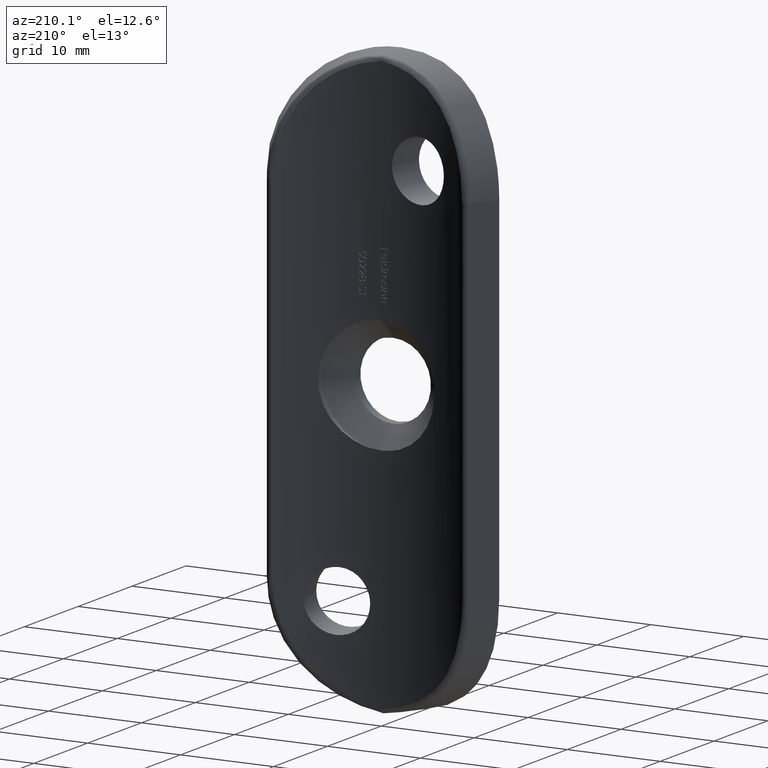
[diagram: clean part render]
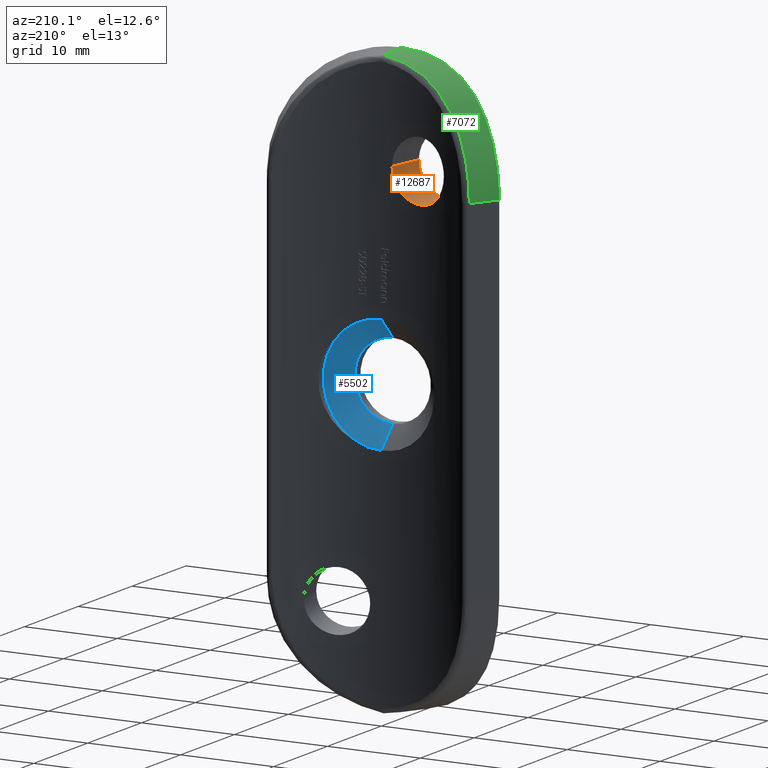
[diagram: same view with three faces highlighted in distinct colors, each labeled with its STEP entity id]
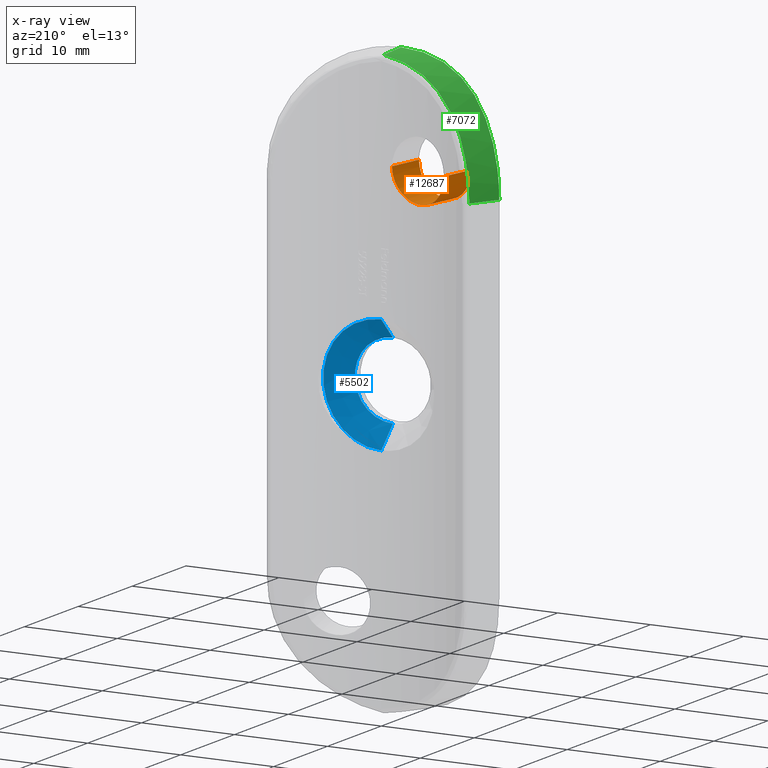
[diagram: x-ray of the same camera — body ghosted, the three highlighted faces saturated]
A machine part, auxiliary view with three faces highlighted in distinct colors.
The next image is the same camera in x-ray (body ghosted, the three faces saturated) — at least one of them is partly hidden behind the body in this view.
Their STEP definitions:

[orange] entity #12687 — the highlighted cylindrical surface (edge-blend (fillet) strip) has radius 3.25 mm, axis along (-0.2079, -0.9781, -0).
#31 = LINE ( 'NONE', #11674, #6998 ) ;
#258 = CARTESIAN_POINT ( 'NONE',  ( -1.346194425568696618, 0.04262545101149552845, 19.94738224441114127 ) ) ;
#277 = VERTEX_POINT ( 'NONE', #703 ) ;
#389 = CARTESIAN_POINT ( 'NONE',  ( -4.619842820613675016, 0.5083790226273787738, 17.75013863852774421 ) ) ;
#476 = CARTESIAN_POINT ( 'NONE',  ( -4.146260408558186228, -3.353143316440096999, 17.91675298037574038 ) ) ;
#638 = CARTESIAN_POINT ( 'NONE',  ( -1.953734233894729000, -3.623233523119175903, 20.78501779748139100 ) ) ;
#703 = CARTESIAN_POINT ( 'NONE',  ( -7.534605570928740725, 1.384104388382301432, 21.00000000000000000 ) ) ;
#751 = VERTEX_POINT ( 'NONE', #12524 ) ;
#1335 = CARTESIAN_POINT ( 'NONE',  ( -1.509982897150109915, 0.05368379863923162382, 19.55662683015119896 ) ) ;
#1408 = CARTESIAN_POINT ( 'NONE',  ( -1.985602618865107916, 0.09265403428726974588, 18.84985939183153647 ) ) ;
#1434 = EDGE_LOOP ( 'NONE', ( #8365, #7177, #8728, #3674 ) ) ;
#1455 = CARTESIAN_POINT ( 'NONE',  ( -5.593732656791021718, -3.064452570265940867, 17.77111690455567938 ) ) ;
#1927 = FACE_OUTER_BOUND ( 'NONE', #1434, .T. ) ;
#1969 = DIRECTION ( 'NONE',  ( 0.9781476007338070211, -0.2079116908177529033, 0.000000000000000000 ) ) ;
#2248 = CARTESIAN_POINT ( 'NONE',  ( -2.285212059606236856, 0.1229869924848302487, 18.55088875764574752 ) ) ;
#2296 = CARTESIAN_POINT ( 'NONE',  ( -2.451845945172084207, 0.1415120541309434765, 18.41406173015351655 ) ) ;
#2372 = CARTESIAN_POINT ( 'NONE',  ( -5.230287084936606767, 0.6542632795133436208, 17.85443948015281279 ) ) ;
#2410 = CARTESIAN_POINT ( 'NONE',  ( -1.176646166158995976, 0.03267839806690362586, 20.78497597136833619 ) ) ;
#2420 = CARTESIAN_POINT ( 'NONE',  ( -2.058099780811208923, -3.614833548855729273, 20.15795557892490919 ) ) ;
#2480 = EDGE_CURVE ( 'NONE', #277, #751, #31, .T. ) ;
#2495 = CARTESIAN_POINT ( 'NONE',  ( -4.968235055740119144, -3.200239380001764555, 17.75007847179410092 ) ) ;
#2537 = CARTESIAN_POINT ( 'NONE',  ( -3.572531012860522104, -3.443026190618076576, 18.17968776511355955 ) ) ;
#2693 = CYLINDRICAL_SURFACE ( 'NONE', #7997, 3.250000000000000000 ) ;
#3056 = DIRECTION ( 'NONE',  ( -0.2079116908177527923, -0.9781476007338069101, -0.000000000000000000 ) ) ;
#3224 = CARTESIAN_POINT ( 'NONE',  ( -4.826455342443546570, 0.5556659297083018645, 17.77145162340002571 ) ) ;
#3264 = CARTESIAN_POINT ( 'NONE',  ( -7.223436184419979256, 1.268400278194601105, 19.56065332086629738 ) ) ;
#3305 = CARTESIAN_POINT ( 'NONE',  ( -3.582909368574065834, 0.3039226079237494771, 17.85325918667133749 ) ) ;
#3351 = CARTESIAN_POINT ( 'NONE',  ( -3.378658273371758725, 0.2700346103439048018, 17.91583498771908012 ) ) ;
#3479 = CARTESIAN_POINT ( 'NONE',  ( -5.999422064239823271, -2.967342395585165438, 17.85421538008817066 ) ) ;
#3523 = CARTESIAN_POINT ( 'NONE',  ( -7.901243526445746568, -2.413435969454043040, 19.36901513717740286 ) ) ;
#3674 = ORIENTED_EDGE ( 'NONE', *, *, #5437, .F. ) ;
#3734 = CARTESIAN_POINT ( 'NONE',  ( -8.311693638664475969, -2.271807532803781893, 21.00000000000000000 ) ) ;
#4295 = CARTESIAN_POINT ( 'NONE',  ( -7.377105535641518941, 1.324763858090435731, 19.95181103982369564 ) ) ;
#4333 = CARTESIAN_POINT ( 'NONE',  ( -7.127487954897731903, 1.233698638178397422, 19.37128528937515881 ) ) ;
#4422 = CARTESIAN_POINT ( 'NONE',  ( -1.974976709534554287, -3.621587494799502593, 20.57367487496663827 ) ) ;
#4460 = CARTESIAN_POINT ( 'NONE',  ( -6.196083258987440168, -2.917574801644966964, 17.91567758223308360 ) ) ;
#4498 = CARTESIAN_POINT ( 'NONE',  ( -6.577162905316569663, -2.816448325724024926, 18.07871272247988159 ) ) ;
#4763 = CARTESIAN_POINT ( 'NONE',  ( -8.291472236758387737, -2.278995920400613606, 20.57218538238684857 ) ) ;
#4878 = VECTOR ( 'NONE', #5111, 1000.000000000000114 ) ;
#4901 = CARTESIAN_POINT ( 'NONE',  ( -1.953734233894729000, -3.623233523119176347, 21.00000000000000000 ) ) ;
#5111 = DIRECTION ( 'NONE',  ( -0.2079116908177527923, -0.9781476007338069101, -0.000000000000000000 ) ) ;
#5153 = CARTESIAN_POINT ( 'NONE',  ( -1.176646166158995754, 0.03267839806690361892, 21.00000000000000000 ) ) ;
#5286 = CARTESIAN_POINT ( 'NONE',  ( -2.989257961926209184, 0.2108809194505207041, 18.07864300747502639 ) ) ;
#5343 = VERTEX_POINT ( 'NONE', #4901 ) ;
#5411 = CARTESIAN_POINT ( 'NONE',  ( -2.621012379984089424, -3.561954104706726465, 19.01817700661172239 ) ) ;
#5437 = EDGE_CURVE ( 'NONE', #7840, #5343, #7531, .T. ) ;
#5456 = CARTESIAN_POINT ( 'NONE',  ( -7.257236752073327857, -2.619439349459192101, 18.55014120457263971 ) ) ;
#5499 = CARTESIAN_POINT ( 'NONE',  ( -3.056879291407171628, -3.512104636248717160, 18.55172243148028954 ) ) ;
#6012 = DIRECTION ( 'NONE',  ( -0.2079116908177528200, -0.9781476007338070211, -0.000000000000000000 ) ) ;
#6155 = CARTESIAN_POINT ( 'NONE',  ( -5.429998914535741683, 0.7062450115325079603, 17.91706365507908316 ) ) ;
#6352 = EDGE_CURVE ( 'NONE', #5343, #751, #12308, .T. ) ;
#6377 = CARTESIAN_POINT ( 'NONE',  ( -2.384921381615275671, -3.585806966551371655, 19.37131130320647898 ) ) ;
#6418 = CARTESIAN_POINT ( 'NONE',  ( -1.953734233894729000, -3.623233523119176347, 21.00000000000000000 ) ) ;
#6463 = CARTESIAN_POINT ( 'NONE',  ( -7.099411980834421598, -2.667121115161826594, 18.41564549803312900 ) ) ;
#6491 = CARTESIAN_POINT ( 'NONE',  ( -1.176646166158995754, 0.03267839806690361892, 21.00000000000000000 ) ) ;
#6998 = VECTOR ( 'NONE', #3056, 1000.000000000000114 ) ;
#7092 = CARTESIAN_POINT ( 'NONE',  ( -7.534605570928740725, 1.384104388382301432, 21.00000000000000000 ) ) ;
#7096 = CARTESIAN_POINT ( 'NONE',  ( 0.1901293215731099662, 6.462851510548683009, 21.00000000000000000 ) ) ;
#7177 = ORIENTED_EDGE ( 'NONE', *, *, #2480, .T. ) ;
#7220 = CARTESIAN_POINT ( 'NONE',  ( -7.515140962870504815, 1.376669338333163184, 20.57663401084888122 ) ) ;
#7267 = CARTESIAN_POINT ( 'NONE',  ( -6.901994961412388996, 1.154632949957503207, 19.01669857707766553 ) ) ;
#7396 = CARTESIAN_POINT ( 'NONE',  ( -4.348508477177133180, -3.318248997855860694, 17.85425842948939845 ) ) ;
#7531 = LINE ( 'NONE', #7096, #4878 ) ;
#7840 = VERTEX_POINT ( 'NONE', #6491 ) ;
#7862 = CARTESIAN_POINT ( 'NONE',  ( -2.988850380811763241, 7.138564505706379570, 21.00000000000000000 ) ) ;
#7997 = AXIS2_PLACEMENT_3D ( 'NONE', #7862, #6012, #1969 ) ;
#8210 = CARTESIAN_POINT ( 'NONE',  ( -5.810257772818229860, 0.8107924049854032811, 18.08068264322724872 ) ) ;
#8249 = CARTESIAN_POINT ( 'NONE',  ( -1.198003973896495822, 0.03383382730752471090, 20.57251448275398786 ) ) ;
#8330 = CARTESIAN_POINT ( 'NONE',  ( -1.611268687452953596, 0.06097864816843895364, 19.36857688446091075 ) ) ;
#8365 = ORIENTED_EDGE ( 'NONE', *, *, #8607, .F. ) ;
#8460 = CARTESIAN_POINT ( 'NONE',  ( -3.759705036286720592, -3.415298904001640601, 18.07887981970656810 ) ) ;
#8607 = EDGE_CURVE ( 'NONE', #277, #7840, #8999, .T. ) ;
#8728 = ORIENTED_EDGE ( 'NONE', *, *, #6352, .F. ) ;
#8999 = B_SPLINE_CURVE_WITH_KNOTS ( 'NONE', 3,
 ( #7092, #9206, #7220, #11196, #4295, #3264, #4333, #7267, #9123, #11115, #12121, #11240, #8210, #6155, #2372, #3224, #389, #10158, #9242, #3305, #3351, #5286, #10236, #2296, #2248, #1408, #10196, #8330, #1335, #258, #12076, #8249, #2410, #5153 ),
 .UNSPECIFIED., .F., .F.,
 ( 4, 2, 2, 2, 2, 2, 2, 2, 2, 2, 2, 2, 2, 2, 2, 2, 4 ),
 ( 0.01017597693529389419, 0.01081181878188314412, 0.01144766062847239578, 0.01208350247506164571, 0.01271934432165089737, 0.01335518616824014730, 0.01399102801482939723, 0.01462686986141864889, 0.01526271170800789882, 0.01589855355459714875, 0.01653439540118640041, 0.01717023724777565208, 0.01780607909436490027, 0.01844192094095415194, 0.01907776278754340360, 0.01971360463413265179, 0.02034944648072190346 ),
 .UNSPECIFIED. ) ;
#9123 = CARTESIAN_POINT ( 'NONE',  ( -6.774079441916868838, 1.110835801520556165, 18.85328016270236517 ) ) ;
#9206 = CARTESIAN_POINT ( 'NONE',  ( -7.534605570928743390, 1.384104388382300321, 20.78777923848333842 ) ) ;
#9242 = CARTESIAN_POINT ( 'NONE',  ( -3.992338764719187250, 0.3782680569848733132, 17.77080693645364562 ) ) ;
#9376 = CARTESIAN_POINT ( 'NONE',  ( -5.383422899901992409, -3.112009362685033587, 17.74992197003081174 ) ) ;
#9413 = CARTESIAN_POINT ( 'NONE',  ( -7.676415085346835809, -2.487478949545609108, 19.01721107133051447 ) ) ;
#10158 = CARTESIAN_POINT ( 'NONE',  ( -4.199697161174648308, 0.4190310593359479197, 17.74986270266247246 ) ) ;
#10196 = CARTESIAN_POINT ( 'NONE',  ( -1.850554568072837691, 0.08058101445634575921, 19.01318825057010642 ) ) ;
#10236 = CARTESIAN_POINT ( 'NONE',  ( -2.803866829250215797, 0.1854861129504238038, 18.17831472722115294 ) ) ;
#10294 = CARTESIAN_POINT ( 'NONE',  ( -2.284802574453760116, -3.595088979218053371, 19.55790613461929794 ) ) ;
#10374 = CARTESIAN_POINT ( 'NONE',  ( -3.219670397495117520, -3.491606675160535023, 18.41727380413788850 ) ) ;
#10419 = CARTESIAN_POINT ( 'NONE',  ( -7.998381526463446356, -2.380556320401623349, 19.55914980505328771 ) ) ;
#11115 = CARTESIAN_POINT ( 'NONE',  ( -6.488054911120530122, 1.016645126511950936, 18.55353100988066473 ) ) ;
#11196 = CARTESIAN_POINT ( 'NONE',  ( -7.436131947323620039, 1.346896366673854484, 20.15655078479217721 ) ) ;
#11240 = CARTESIAN_POINT ( 'NONE',  ( -5.989746127808300180, 0.8629840523545441178, 18.18064973074769242 ) ) ;
#11326 = CARTESIAN_POINT ( 'NONE',  ( -2.121005393509497239, -3.609637168090038095, 19.95140699315099653 ) ) ;
#11368 = CARTESIAN_POINT ( 'NONE',  ( -6.760529957523137234, -2.765315676887109664, 18.18042998040154146 ) ) ;
#11410 = CARTESIAN_POINT ( 'NONE',  ( -8.153739686093205208, -2.327287828263022718, 19.95261163739872856 ) ) ;
#11674 = CARTESIAN_POINT ( 'NONE',  ( -6.167830083196636615, 7.814277500864075243, 21.00000000000000000 ) ) ;
#12076 = CARTESIAN_POINT ( 'NONE',  ( -1.282804818851329021, 0.03880400903023551590, 20.15264001622684376 ) ) ;
#12121 = CARTESIAN_POINT ( 'NONE',  ( -6.328193146980416905, 0.9657407394070834927, 18.41634454153444267 ) ) ;
#12287 = CARTESIAN_POINT ( 'NONE',  ( -2.758094719920883175, -3.547232978074213339, 18.85116123079995276 ) ) ;
#12308 = B_SPLINE_CURVE_WITH_KNOTS ( 'NONE', 3,
 ( #6418, #638, #4422, #2420, #11326, #10294, #6377, #5411, #12287, #5499, #10374, #2537, #8460, #476, #7396, #12360, #2495, #9376, #1455, #3479, #4460, #4498, #11368, #6463, #5456, #12322, #9413, #3523, #10419, #11410, #12449, #4763, #12614, #3734 ),
 .UNSPECIFIED., .F., .F.,
 ( 4, 2, 2, 2, 2, 2, 2, 2, 2, 2, 2, 2, 2, 2, 2, 2, 4 ),
 ( 0.000000000000000000, 0.0006357390089244237740, 0.001271478017848847548, 0.001907217026773271214, 0.002542956035697695096, 0.003178695044622118979, 0.003814434053546542427, 0.004450173062470966744, 0.005085912071395390192, 0.005721651080319813641, 0.006357390089244237957, 0.006993129098168661406, 0.007628868107093084855, 0.008264607116017508304, 0.008900346124941933487, 0.009536085133866356936, 0.01017182414279078038 ),
 .UNSPECIFIED. ) ;
#12322 = CARTESIAN_POINT ( 'NONE',  ( -7.547944963167426025, -2.528921236145654561, 18.85326360323643868 ) ) ;
#12360 = CARTESIAN_POINT ( 'NONE',  ( -4.761233854241790908, -3.241454786533537913, 17.77074370881815568 ) ) ;
#12449 = CARTESIAN_POINT ( 'NONE',  ( -8.212280122116759173, -2.306812129232022723, 20.15522457536665257 ) ) ;
#12524 = CARTESIAN_POINT ( 'NONE',  ( -8.311693638664475969, -2.271807532803781893, 21.00000000000000000 ) ) ;
#12614 = CARTESIAN_POINT ( 'NONE',  ( -8.311693638664479522, -2.271807532803783225, 20.78777409863063852 ) ) ;
#12687 = ADVANCED_FACE ( 'NONE', ( #1927 ), #2693, .F. ) ;

[blue] entity #5502 — the highlighted conical surface has half-angle 45 deg.
#329 = CARTESIAN_POINT ( 'NONE',  ( 5.021051876504147385E-16, -2.150000000000024336, 4.099999999999999645 ) ) ;
#671 = EDGE_CURVE ( 'NONE', #5041, #3445, #6069, .T. ) ;
#684 = CARTESIAN_POINT ( 'NONE',  ( 0.000000000000000000, -2.150000000000024336, 4.099999999999999645 ) ) ;
#814 = CIRCLE ( 'NONE', #10894, 6.250000000000000888 ) ;
#835 = EDGE_CURVE ( 'NONE', #8588, #11026, #2389, .T. ) ;
#1667 = DIRECTION ( 'NONE',  ( 0.000000000000000000, 0.7071067811865513475, 0.7071067811865436870 ) ) ;
#1810 = DIRECTION ( 'NONE',  ( 0.000000000000000000, 0.000000000000000000, -1.000000000000000000 ) ) ;
#2071 = ORIENTED_EDGE ( 'NONE', *, *, #2790, .F. ) ;
#2163 = DIRECTION ( 'NONE',  ( 0.000000000000000000, 0.000000000000000000, 1.000000000000000000 ) ) ;
#2288 = FACE_OUTER_BOUND ( 'NONE', #5150, .T. ) ;
#2389 = LINE ( 'NONE', #12036, #6696 ) ;
#2790 = EDGE_CURVE ( 'NONE', #11026, #3445, #814, .T. ) ;
#2935 = CARTESIAN_POINT ( 'NONE',  ( 0.000000000000000000, -2.150000000000024336, 0.000000000000000000 ) ) ;
#3231 = DIRECTION ( 'NONE',  ( 0.000000000000000000, 1.000000000000000000, 0.000000000000000000 ) ) ;
#3442 = VECTOR ( 'NONE', #1667, 1000.000000000000000 ) ;
#3445 = VERTEX_POINT ( 'NONE', #5266 ) ;
#4035 = CARTESIAN_POINT ( 'NONE',  ( 0.000000000000000000, 8.673617379884035472E-16, 0.000000000000000000 ) ) ;
#4717 = ORIENTED_EDGE ( 'NONE', *, *, #835, .F. ) ;
#5017 = DIRECTION ( 'NONE',  ( 0.000000000000000000, 0.000000000000000000, -1.000000000000000000 ) ) ;
#5041 = VERTEX_POINT ( 'NONE', #329 ) ;
#5150 = EDGE_LOOP ( 'NONE', ( #4717, #9399, #9635, #2071 ) ) ;
#5266 = CARTESIAN_POINT ( 'NONE',  ( 0.000000000000000000, 8.673617379884035472E-16, 6.250000000000000888 ) ) ;
#5502 = ADVANCED_FACE ( 'NONE', ( #2288 ), #10728, .F. ) ;
#6069 = LINE ( 'NONE', #684, #3442 ) ;
#6256 = CIRCLE ( 'NONE', #12565, 4.099999999999999645 ) ;
#6696 = VECTOR ( 'NONE', #11119, 1000.000000000000000 ) ;
#7128 = CARTESIAN_POINT ( 'NONE',  ( 0.000000000000000000, -2.150000000000024336, -4.099999999999999645 ) ) ;
#7837 = AXIS2_PLACEMENT_3D ( 'NONE', #8006, #3231, #2163 ) ;
#7928 = CARTESIAN_POINT ( 'NONE',  ( 1.334726487200318584E-16, -1.247990551215904338E-15, -6.250000000000000000 ) ) ;
#8006 = CARTESIAN_POINT ( 'NONE',  ( 0.000000000000000000, -2.150000000000024336, 0.000000000000000000 ) ) ;
#8060 = EDGE_CURVE ( 'NONE', #8588, #5041, #6256, .T. ) ;
#8588 = VERTEX_POINT ( 'NONE', #7128 ) ;
#9399 = ORIENTED_EDGE ( 'NONE', *, *, #8060, .T. ) ;
#9635 = ORIENTED_EDGE ( 'NONE', *, *, #671, .T. ) ;
#10728 = CONICAL_SURFACE ( 'NONE', #7837, 4.099999999999999645, 0.7853981633974428389 ) ;
#10894 = AXIS2_PLACEMENT_3D ( 'NONE', #4035, #10935, #5017 ) ;
#10935 = DIRECTION ( 'NONE',  ( -0.000000000000000000, -1.000000000000000000, -0.000000000000000000 ) ) ;
#11026 = VERTEX_POINT ( 'NONE', #7928 ) ;
#11119 = DIRECTION ( 'NONE',  ( 8.659560562354886020E-17, 0.7071067811865513475, -0.7071067811865436870 ) ) ;
#12036 = CARTESIAN_POINT ( 'NONE',  ( 5.021051876504147385E-16, -2.150000000000024336, -4.099999999999999645 ) ) ;
#12565 = AXIS2_PLACEMENT_3D ( 'NONE', #2935, #12676, #1810 ) ;
#12676 = DIRECTION ( 'NONE',  ( -0.000000000000000000, -1.000000000000000000, -0.000000000000000000 ) ) ;

[green] entity #7072 — the highlighted cylindrical surface (partial cylindrical patch) has radius 12.5 mm, axis along (0.502, 0.8649, -0).
#227 = CARTESIAN_POINT ( 'NONE',  ( -3.722145375514098298, -0.1174825666102539967, 30.47237530460908417 ) ) ;
#275 = CARTESIAN_POINT ( 'NONE',  ( -10.37901783092901198, 2.163308026600583744, 22.78354983175704263 ) ) ;
#456 = ORIENTED_EDGE ( 'NONE', *, *, #641, .T. ) ;
#481 = EDGE_CURVE ( 'NONE', #8096, #11333, #6657, .T. ) ;
#641 = EDGE_CURVE ( 'NONE', #11333, #8715, #2920, .T. ) ;
#822 = CARTESIAN_POINT ( 'NONE',  ( -8.726861821286908238, -2.122621724067655258, 28.32083224964318546 ) ) ;
#866 = CARTESIAN_POINT ( 'NONE',  ( -11.76331346042335291, -0.7467956537882093349, 23.53428647861794687 ) ) ;
#950 = CARTESIAN_POINT ( 'NONE',  ( -3.326709355953370473, -3.480161226016122100, 31.14417457843204318 ) ) ;
#993 = CARTESIAN_POINT ( 'NONE',  ( -8.426798762438689749, -2.233127809830854904, 28.59339183782865135 ) ) ;
#1213 = CARTESIAN_POINT ( 'NONE',  ( -9.035279559040494846, 1.517712944394773444, 25.89464071519139665 ) ) ;
#1257 = CARTESIAN_POINT ( 'NONE',  ( -8.404436157681665520, 1.249794867364261375, 26.82734984694793567 ) ) ;
#1896 = ORIENTED_EDGE ( 'NONE', *, *, #7049, .F. ) ;
#1941 = CARTESIAN_POINT ( 'NONE',  ( -5.697099977467494192, -3.052350279244575137, 30.37126108137578839 ) ) ;
#2213 = CARTESIAN_POINT ( 'NONE',  ( -9.587749169269603300, 1.767324810813492686, 24.91827199489953415 ) ) ;
#2215 = CARTESIAN_POINT ( 'NONE',  ( -1.851926612682690244E-15, -3.699999999999998401, 31.50000000000000000 ) ) ;
#2263 = CARTESIAN_POINT ( 'NONE',  ( -10.64252913189476679, 2.302479216670972662, 21.66950056038004391 ) ) ;
#2310 = CARTESIAN_POINT ( 'NONE',  ( -1.904176963450266769, -0.3623903095538353880, 31.05567707528684096 ) ) ;
#2802 = EDGE_CURVE ( 'NONE', #3855, #8715, #3127, .T. ) ;
#2804 = CARTESIAN_POINT ( 'NONE',  ( -7.458214924960393510, -2.559493691304519203, 29.34887030927547613 ) ) ;
#2849 = CARTESIAN_POINT ( 'NONE',  ( -12.20613816811370000, -0.5031632612494597590, 21.91975416837983914 ) ) ;
#2897 = CARTESIAN_POINT ( 'NONE',  ( -6.427600121148984158, -2.866782045358096553, 30.00917161764901664 ) ) ;
#2920 = B_SPLINE_CURVE_WITH_KNOTS ( 'NONE', 3,
 ( #4306, #6303, #12173, #4181, #2310, #9256, #227, #3364, #4341, #6213, #10252, #11255, #9174, #3275, #1257, #8183, #1213, #2213, #6168, #9095, #275, #7186, #2263, #11128, #10171, #12092 ),
 .UNSPECIFIED., .F., .F.,
 ( 4, 2, 2, 2, 2, 2, 2, 2, 2, 2, 2, 2, 4 ),
 ( 0.000000000000000000, 0.001161208984453286630, 0.002322417968906574995, 0.004644835937813149990, 0.005806044922266438355, 0.006967253906719727587, 0.009289671875626308653, 0.01045088086007959528, 0.01161208984453288018, 0.01393450781343945517, 0.01509571679789274007, 0.01625692578234602323, 0.01857934375125259302 ),
 .UNSPECIFIED. ) ;
#2971 = CARTESIAN_POINT ( 'NONE',  ( -11.89240800051591762, -0.6768527939334674226, 23.13767898728238848 ) ) ;
#3084 = CARTESIAN_POINT ( 'NONE',  ( -10.64257028112449355, 2.864905295817926412, 19.00000000000000000 ) ) ;
#3127 = LINE ( 'NONE', #3084, #7159 ) ;
#3275 = CARTESIAN_POINT ( 'NONE',  ( -8.172666840697736745, 1.156575065583176132, 27.12569061865148257 ) ) ;
#3364 = CARTESIAN_POINT ( 'NONE',  ( -4.735884520321929969, 0.09562791914021957773, 29.97130340277395177 ) ) ;
#3837 = CARTESIAN_POINT ( 'NONE',  ( 10.81078697180547366, 14.92489959839356928, 19.00000000000000000 ) ) ;
#3855 = VERTEX_POINT ( 'NONE', #12246 ) ;
#4181 = CARTESIAN_POINT ( 'NONE',  ( -1.526829681125244198, -0.3965501718721306523, 31.14486316553924894 ) ) ;
#4306 = CARTESIAN_POINT ( 'NONE',  ( 1.149669547333050099E-15, -0.4673406116063780757, 31.39421042555791530 ) ) ;
#4341 = CARTESIAN_POINT ( 'NONE',  ( -5.065702197598429990, 0.1728216056635637488, 29.78806897644023621 ) ) ;
#4778 = DIRECTION ( 'NONE',  ( 0.5020080321285140812, 0.8648629577444374439, -0.000000000000000000 ) ) ;
#4816 = CARTESIAN_POINT ( 'NONE',  ( -12.50000000000001599, -0.3350876478364871458, 19.00000000000000000 ) ) ;
#4868 = CARTESIAN_POINT ( 'NONE',  ( -4.536104719482227488, -3.286519036584182096, 30.80458124670328601 ) ) ;
#4909 = CARTESIAN_POINT ( 'NONE',  ( -0.8485222660399418526, -3.699999999999995293, 31.50000000000000711 ) ) ;
#4950 = CARTESIAN_POINT ( 'NONE',  ( -12.49999999999999645, -0.3350876478364950284, 19.84934557348218220 ) ) ;
#5773 = CARTESIAN_POINT ( 'NONE',  ( -9.294834488877087963, -1.902139579618345344, 27.74509139799636159 ) ) ;
#5987 = CARTESIAN_POINT ( 'NONE',  ( 1.149669547333050099E-15, -0.4673406116063780757, 31.39421042555791530 ) ) ;
#6168 = CARTESIAN_POINT ( 'NONE',  ( -9.895329955964312418, 1.917468678574771657, 24.23304662918588193 ) ) ;
#6213 = CARTESIAN_POINT ( 'NONE',  ( -5.708646956014399088, 0.3375534250088046972, 29.38719145087421580 ) ) ;
#6303 = CARTESIAN_POINT ( 'NONE',  ( -0.3857525109607254921, -0.4615508653606031353, 31.35014733435442125 ) ) ;
#6498 = ORIENTED_EDGE ( 'NONE', *, *, #481, .T. ) ;
#6657 =( BOUNDED_CURVE ( )  B_SPLINE_CURVE ( 3, ( #2215, #9993, #9137, #5987 ),
 .UNSPECIFIED., .F., .F. ) 
 B_SPLINE_CURVE_WITH_KNOTS ( ( 4, 4 ),
 ( 4.712388980384689674, 4.842582148405796261 ),
 .UNSPECIFIED. ) 
 CURVE ( )  GEOMETRIC_REPRESENTATION_ITEM ( )  RATIONAL_B_SPLINE_CURVE ( ( 1.000000000000000000, 0.9985879769840240172, 0.9985879769840240172, 1.000000000000000000 ) ) 
 REPRESENTATION_ITEM ( '' )  );
#6924 = CARTESIAN_POINT ( 'NONE',  ( -2.918689159785872178, -3.531805621636149528, 31.23074963876304366 ) ) ;
#7049 = EDGE_CURVE ( 'NONE', #8096, #3855, #10356, .T. ) ;
#7062 = ORIENTED_EDGE ( 'NONE', *, *, #2802, .F. ) ;
#7072 = ADVANCED_FACE ( 'NONE', ( #11791 ), #11494, .T. ) ;
#7159 = VECTOR ( 'NONE', #11989, 1000.000000000000227 ) ;
#7186 = CARTESIAN_POINT ( 'NONE',  ( -10.56531761606724551, 2.261153944151151229, 22.04284560907184343 ) ) ;
#7423 = AXIS2_PLACEMENT_3D ( 'NONE', #3837, #4778, #10868 ) ;
#7508 = CARTESIAN_POINT ( 'NONE',  ( -10.89068216193508398, 2.437456407839876160, 19.00000000000000000 ) ) ;
#7789 = CARTESIAN_POINT ( 'NONE',  ( -1.851926612682690244E-15, -3.699999999999998401, 31.50000000000000000 ) ) ;
#7882 = CARTESIAN_POINT ( 'NONE',  ( -4.135648248747846090, -3.357560278736284598, 30.93120312933528027 ) ) ;
#7921 = CARTESIAN_POINT ( 'NONE',  ( -9.562742186441692382, -1.792157204991542629, 27.44191066448328087 ) ) ;
#8096 = VERTEX_POINT ( 'NONE', #8803 ) ;
#8183 = CARTESIAN_POINT ( 'NONE',  ( -8.835835642423363723, 1.430437285731798402, 26.21146494651176795 ) ) ;
#8228 = EDGE_LOOP ( 'NONE', ( #6498, #456, #7062, #1896 ) ) ;
#8715 = VERTEX_POINT ( 'NONE', #7508 ) ;
#8717 = CARTESIAN_POINT ( 'NONE',  ( -1.684590046232964600, -3.656708938383484764, 31.43582571062113118 ) ) ;
#8803 = CARTESIAN_POINT ( 'NONE',  ( -1.851926612682690244E-15, -3.699999999999998401, 31.50000000000000000 ) ) ;
#8835 = CARTESIAN_POINT ( 'NONE',  ( -7.792790710600445259, -2.451529110721061500, 29.10741663418268388 ) ) ;
#8987 = CARTESIAN_POINT ( 'NONE',  ( 1.149669547333050099E-15, -0.4673406116063780757, 31.39421042555791530 ) ) ;
#9095 = CARTESIAN_POINT ( 'NONE',  ( -10.26920461469040191, 2.106422435699066842, 23.15280607631129328 ) ) ;
#9137 = CARTESIAN_POINT ( 'NONE',  ( 1.631409888311767689E-15, -1.539556005456988341, 31.46468694567382940 ) ) ;
#9174 = CARTESIAN_POINT ( 'NONE',  ( -7.442532452984153224, 0.8776886570223532136, 27.97428042536247972 ) ) ;
#9256 = CARTESIAN_POINT ( 'NONE',  ( -3.014047091458882832, -0.2349810422590900560, 30.74181323010165201 ) ) ;
#9722 = CARTESIAN_POINT ( 'NONE',  ( -10.96215273999210638, -1.162355022854746123, 25.42660470341871104 ) ) ;
#9769 = CARTESIAN_POINT ( 'NONE',  ( -11.32421806158935418, -0.9784043033494785879, 24.69267738237084231 ) ) ;
#9858 = CARTESIAN_POINT ( 'NONE',  ( -12.11444369692912915, -0.5546847858594304848, 22.32797418444289406 ) ) ;
#9993 = CARTESIAN_POINT ( 'NONE',  ( 2.116233025283905047E-15, -2.618632816214329750, 31.50000000000000000 ) ) ;
#10171 = CARTESIAN_POINT ( 'NONE',  ( -10.89068216193508398, 2.437456407839873052, 19.77640825180817785 ) ) ;
#10252 = CARTESIAN_POINT ( 'NONE',  ( -6.018685622804218482, 0.4243408902976382180, 29.17129357762806663 ) ) ;
#10356 = B_SPLINE_CURVE_WITH_KNOTS ( 'NONE', 3,
 ( #7789, #4909, #8717, #6924, #950, #7882, #4868, #1941, #2897, #2804, #8835, #993, #822, #5773, #7921, #10824, #11843, #9722, #9769, #866, #2971, #9858, #2849, #10737, #4950, #4816 ),
 .UNSPECIFIED., .F., .F.,
 ( 4, 2, 2, 2, 2, 2, 2, 2, 2, 2, 2, 2, 4 ),
 ( 8.175549369649834131E-18, 0.002513160407614259146, 0.003769740611421385033, 0.005026320815228510486, 0.007539481222842762259, 0.008796061426649888146, 0.01005264163045701403, 0.01130922183426413818, 0.01256580203807126581, 0.01507896244568552278, 0.01633554264949264520, 0.01759212285329977282, 0.02010528326091403153 ),
 .UNSPECIFIED. ) ;
#10737 = CARTESIAN_POINT ( 'NONE',  ( -12.42611647003895747, -0.3784625858087484751, 20.68529108198777067 ) ) ;
#10824 = CARTESIAN_POINT ( 'NONE',  ( -10.06722811895349423, -1.575782073605031641, 26.80457444350424012 ) ) ;
#10868 = DIRECTION ( 'NONE',  ( -0.8648629577444376659, 0.5020080321285140812, 0.000000000000000000 ) ) ;
#11128 = CARTESIAN_POINT ( 'NONE',  ( -10.82802512140448670, 2.402563072010277523, 20.54065016212287986 ) ) ;
#11255 = CARTESIAN_POINT ( 'NONE',  ( -6.904985649179108620, 0.6907721564610237452, 28.48531783296846953 ) ) ;
#11333 = VERTEX_POINT ( 'NONE', #8987 ) ;
#11494 = CYLINDRICAL_SURFACE ( 'NONE', #7423, 12.50000000000000178 ) ;
#11791 = FACE_OUTER_BOUND ( 'NONE', #8228, .T. ) ;
#11843 = CARTESIAN_POINT ( 'NONE',  ( -10.30494482841415049, -1.468845158038349696, 26.46853942905613977 ) ) ;
#11989 = DIRECTION ( 'NONE',  ( 0.5020080321285140812, 0.8648629577444375549, -0.000000000000000000 ) ) ;
#12092 = CARTESIAN_POINT ( 'NONE',  ( -10.89068216193508398, 2.437456407839876160, 19.00000000000000000 ) ) ;
#12173 = CARTESIAN_POINT ( 'NONE',  ( -0.7683342868648515012, -0.4460393953555595314, 31.29188355289227275 ) ) ;
#12246 = CARTESIAN_POINT ( 'NONE',  ( -12.50000000000001599, -0.3350876478364871458, 19.00000000000000000 ) ) ;